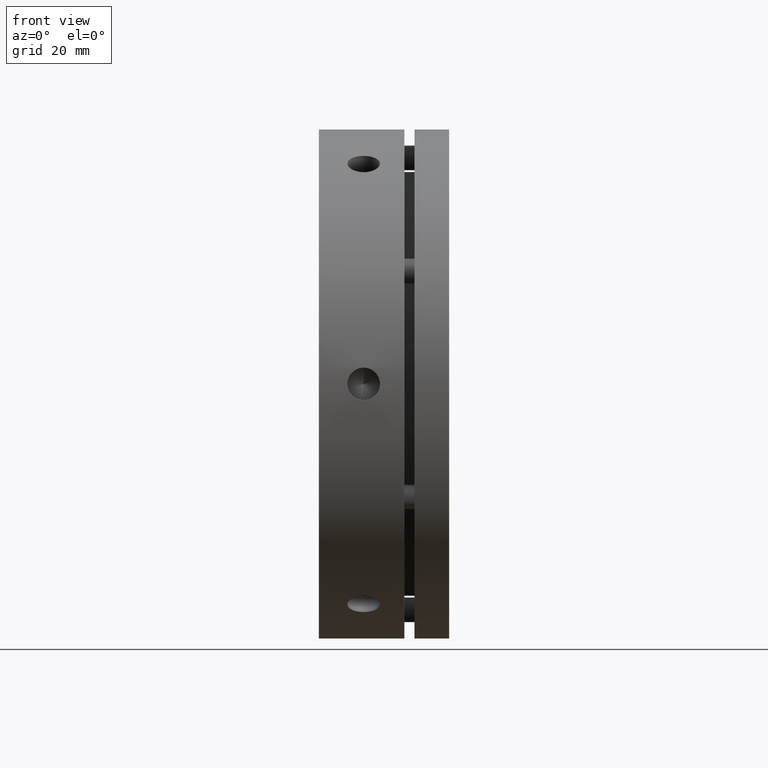
[diagram: clean part render]
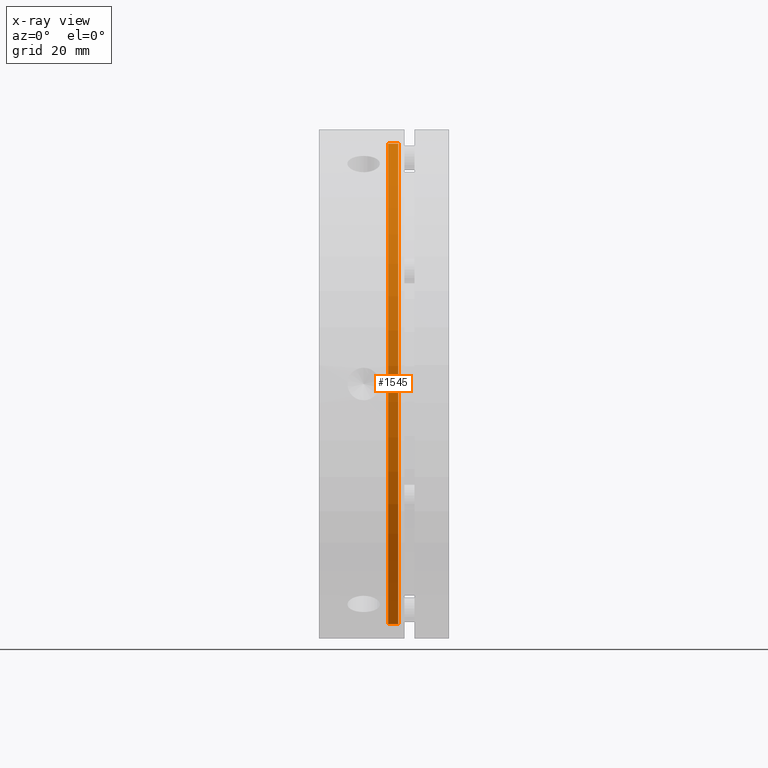
[diagram: x-ray — body ghosted, one internal face saturated and labeled with its STEP entity id]
A machine part, front view, then the same camera in x-ray: the body is ghosted and one INTERNAL B-rep face — a face not visible from any outside direction — is saturated and labeled: STEP entity #1545.
In plain terms, the highlighted cylindrical surface (partial cylindrical patch) has radius 59 mm, axis along (-1, 0, 0).
Its self-contained STEP definition (entity closure, byte-faithful):
#117 = VERTEX_POINT ( 'NONE', #1158 ) ;
#118 = VERTEX_POINT ( 'NONE', #1159 ) ;
#125 = VERTEX_POINT ( 'NONE', #1166 ) ;
#126 = VERTEX_POINT ( 'NONE', #1167 ) ;
#391 = EDGE_LOOP ( 'NONE', ( #3599, #3598, #3597, #3595 ) ) ;
#454 = CIRCLE ( 'NONE', #3818, 59.00000000000000700 ) ;
#459 = VECTOR ( 'NONE', #2449, 1000.000000000000000 ) ;
#462 = LINE ( 'NONE', #2450, #459 ) ;
#468 = CIRCLE ( 'NONE', #3798, 59.00000000000000700 ) ;
#482 = VECTOR ( 'NONE', #2524, 1000.000000000000000 ) ;
#484 = LINE ( 'NONE', #2526, #482 ) ;
#906 = EDGE_CURVE ( 'NONE', #126, #125, #454, .T. ) ;
#907 = EDGE_CURVE ( 'NONE', #125, #118, #462, .T. ) ;
#1158 = CARTESIAN_POINT ( 'NONE',  ( 16.99999999999999300, 0.0000000000000000000, 59.00000000000000700 ) ) ;
#1159 = CARTESIAN_POINT ( 'NONE',  ( 16.99999999999999300, 7.225416114969384800E-015, -59.00000000000000700 ) ) ;
#1166 = CARTESIAN_POINT ( 'NONE',  ( 19.49999999999998900, 7.225416114969384800E-015, -59.00000000000000700 ) ) ;
#1167 = CARTESIAN_POINT ( 'NONE',  ( 19.49999999999998900, 0.0000000000000000000, 59.00000000000000700 ) ) ;
#1426 = EDGE_CURVE ( 'NONE', #126, #117, #484, .T. ) ;
#1436 = EDGE_CURVE ( 'NONE', #118, #117, #468, .T. ) ;
#1545 = ADVANCED_FACE ( 'NONE', ( #1850 ), #1859, .F. ) ;
#1850 = FACE_OUTER_BOUND ( 'NONE', #391, .T. ) ;
#1859 = CYLINDRICAL_SURFACE ( 'NONE', #3535, 59.00000000000000700 ) ;
#2449 = DIRECTION ( 'NONE',  ( -1.000000000000000000, 0.0000000000000000000, 0.0000000000000000000 ) ) ;
#2450 = CARTESIAN_POINT ( 'NONE',  ( 18.24999999999999300, 7.225416114969384800E-015, -59.00000000000000700 ) ) ;
#2451 = CARTESIAN_POINT ( 'NONE',  ( 19.49999999999998900, 0.0000000000000000000, 0.0000000000000000000 ) ) ;
#2452 = DIRECTION ( 'NONE',  ( 1.000000000000000000, -0.0000000000000000000, -0.0000000000000000000 ) ) ;
#2453 = DIRECTION ( 'NONE',  ( 0.0000000000000000000, 0.0000000000000000000, 1.000000000000000000 ) ) ;
#2524 = DIRECTION ( 'NONE',  ( -1.000000000000000000, 0.0000000000000000000, 0.0000000000000000000 ) ) ;
#2526 = CARTESIAN_POINT ( 'NONE',  ( 18.24999999999999300, 0.0000000000000000000, 59.00000000000000700 ) ) ;
#2553 = CARTESIAN_POINT ( 'NONE',  ( 16.99999999999999300, 0.0000000000000000000, 0.0000000000000000000 ) ) ;
#2554 = DIRECTION ( 'NONE',  ( -1.000000000000000000, 0.0000000000000000000, 0.0000000000000000000 ) ) ;
#2555 = DIRECTION ( 'NONE',  ( 0.0000000000000000000, 0.0000000000000000000, 1.000000000000000000 ) ) ;
#2897 = DIRECTION ( 'NONE',  ( 0.0000000000000000000, 0.0000000000000000000, 1.000000000000000000 ) ) ;
#2899 = DIRECTION ( 'NONE',  ( -1.000000000000000000, 0.0000000000000000000, 0.0000000000000000000 ) ) ;
#2901 = CARTESIAN_POINT ( 'NONE',  ( 18.24999999999999300, 0.0000000000000000000, 0.0000000000000000000 ) ) ;
#3535 = AXIS2_PLACEMENT_3D ( 'NONE', #2901, #2899, #2897 ) ;
#3595 = ORIENTED_EDGE ( 'NONE', *, *, #1426, .F. ) ;
#3597 = ORIENTED_EDGE ( 'NONE', *, *, #1436, .T. ) ;
#3598 = ORIENTED_EDGE ( 'NONE', *, *, #907, .T. ) ;
#3599 = ORIENTED_EDGE ( 'NONE', *, *, #906, .T. ) ;
#3798 = AXIS2_PLACEMENT_3D ( 'NONE', #2553, #2554, #2555 ) ;
#3818 = AXIS2_PLACEMENT_3D ( 'NONE', #2451, #2452, #2453 ) ;